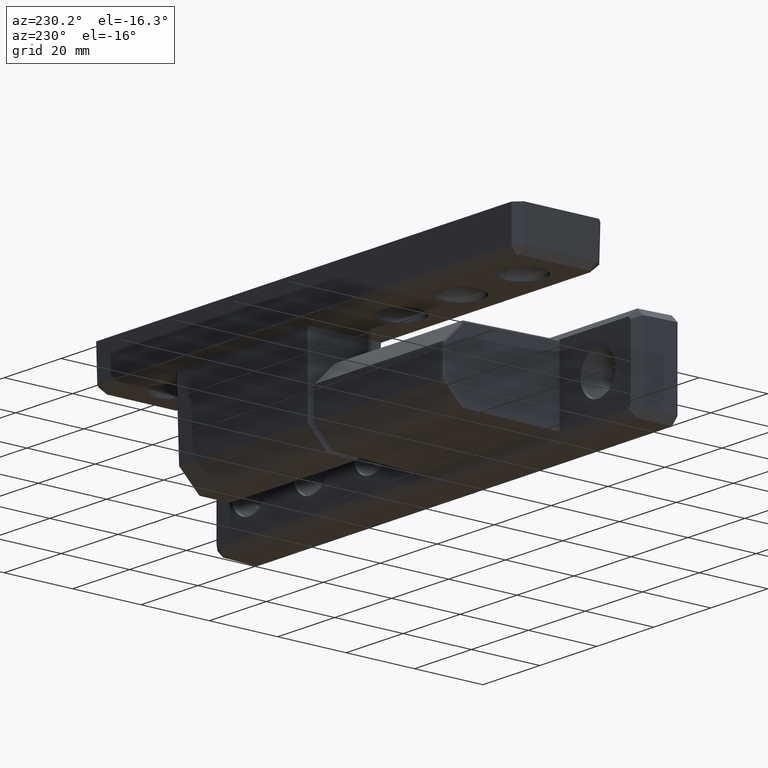
[diagram: clean part render]
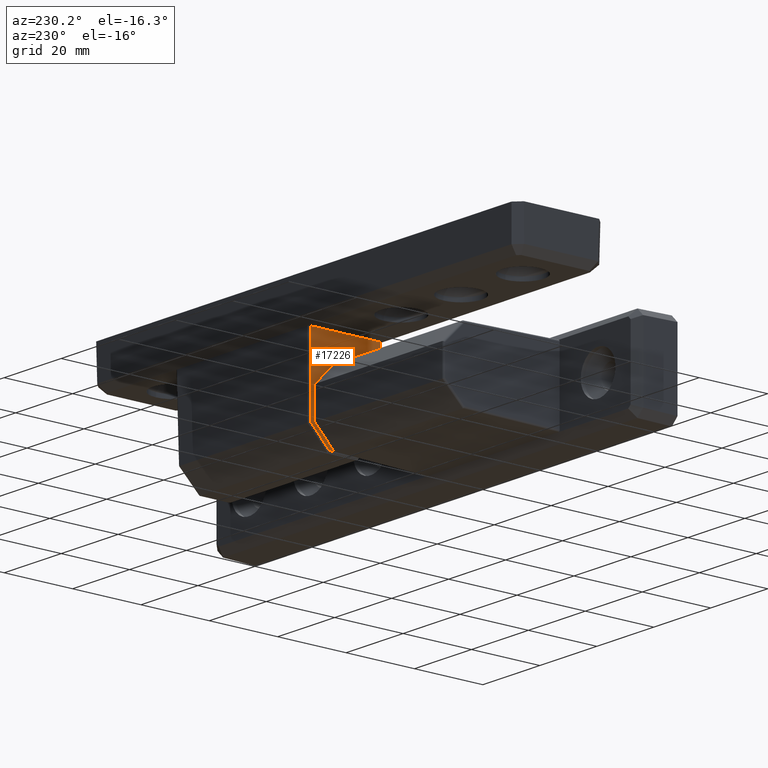
[diagram: same view with one face highlighted and labeled with its STEP entity id]
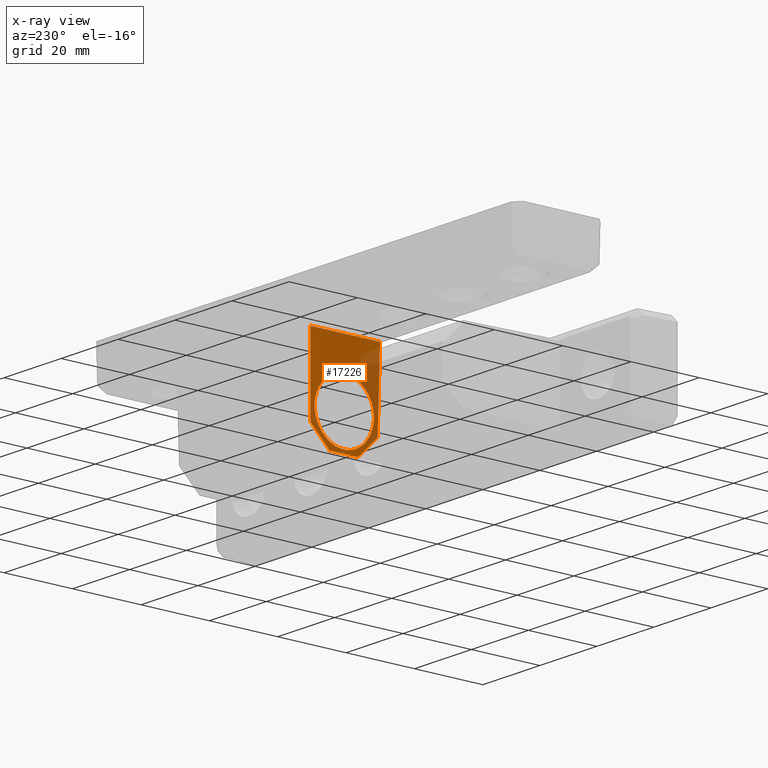
[diagram: x-ray of the same camera — body ghosted, the highlighted face saturated]
A machine part, auxiliary view. The second image highlights one B-rep face of the part: STEP entity #17226.
The next image is the same camera in x-ray: the body ghosted, the highlighted face saturated — about 29% of this face is hidden behind the body in this view.
In plain terms, the highlighted planar face has unit normal (-0.9998, 0, -0.0175).
Its self-contained STEP definition (entity closure, byte-faithful):
#376=ELLIPSE('',#18173,8.50129478837322,8.5);
#377=ELLIPSE('',#18177,8.701325253982,8.7);
#586=LINE('',#23396,#1984);
#587=LINE('',#23398,#1985);
#588=LINE('',#23400,#1986);
#589=LINE('',#23402,#1987);
#590=LINE('',#23404,#1988);
#591=LINE('',#23405,#1989);
#1984=VECTOR('',#19426,22.3862709241115);
#1985=VECTOR('',#19427,20.4256016555614);
#1986=VECTOR('',#19428,22.3862709241117);
#1987=VECTOR('',#19429,7.96160029979453);
#1988=VECTOR('',#19430,8.3857864376267);
#1989=VECTOR('',#19431,7.96160029979489);
#3890=PLANE('',#18176);
#4561=FACE_BOUND('',#5613,.T.);
#4668=FACE_OUTER_BOUND('',#5612,.T.);
#5612=EDGE_LOOP('',(#11120,#11121,#11122,#11123,#11124,#11125));
#5613=EDGE_LOOP('',(#11126,#11127));
#6893=VERTEX_POINT('',#23385);
#6894=VERTEX_POINT('',#23387);
#6896=VERTEX_POINT('',#23394);
#6897=VERTEX_POINT('',#23395);
#6898=VERTEX_POINT('',#23397);
#6899=VERTEX_POINT('',#23399);
#6900=VERTEX_POINT('',#23401);
#6901=VERTEX_POINT('',#23403);
#8577=EDGE_CURVE('',#6894,#6893,#376,.T.);
#8580=EDGE_CURVE('',#6896,#6897,#586,.T.);
#8581=EDGE_CURVE('',#6897,#6898,#587,.T.);
#8582=EDGE_CURVE('',#6898,#6899,#588,.T.);
#8583=EDGE_CURVE('',#6899,#6900,#589,.T.);
#8584=EDGE_CURVE('',#6900,#6901,#590,.T.);
#8585=EDGE_CURVE('',#6901,#6896,#591,.T.);
#8586=EDGE_CURVE('',#6894,#6893,#377,.T.);
#11120=ORIENTED_EDGE('',*,*,#8580,.T.);
#11121=ORIENTED_EDGE('',*,*,#8581,.T.);
#11122=ORIENTED_EDGE('',*,*,#8582,.T.);
#11123=ORIENTED_EDGE('',*,*,#8583,.T.);
#11124=ORIENTED_EDGE('',*,*,#8584,.T.);
#11125=ORIENTED_EDGE('',*,*,#8585,.T.);
#11126=ORIENTED_EDGE('',*,*,#8577,.T.);
#11127=ORIENTED_EDGE('',*,*,#8586,.F.);
#17226=ADVANCED_FACE('',(#4668,#4561),#3890,.T.);
#18173=AXIS2_PLACEMENT_3D('',#23388,#19417,#19418);
#18176=AXIS2_PLACEMENT_3D('',#23393,#19424,#19425);
#18177=AXIS2_PLACEMENT_3D('',#23406,#19432,#19433);
#19417=DIRECTION('center_axis',(0.999847695156391,0.,0.0174524064372835));
#19418=DIRECTION('ref_axis',(0.0174524064372835,0.,-0.999847695156391));
#19424=DIRECTION('center_axis',(-0.999847695156391,0.,-0.0174524064372835));
#19425=DIRECTION('ref_axis',(-0.0174524064372861,0.,0.999847695156391));
#19426=DIRECTION('',(-0.0174497491606827,-0.017449749160688,0.999695459881887));
#19427=DIRECTION('',(0.,1.,0.));
#19428=DIRECTION('',(0.0174497491606827,-0.0174497491606755,-0.999695459881888));
#19429=DIRECTION('',(0.0123416547509368,-0.707052927141246,-0.707052927141246));
#19430=DIRECTION('',(2.20216079314026E-16,-1.,-1.26161707343768E-14));
#19431=DIRECTION('',(-0.0123416547509368,-0.707052927141246,0.707052927141246));
#19432=DIRECTION('center_axis',(-0.999847695156391,0.,-0.0174524064372835));
#19433=DIRECTION('ref_axis',(-0.0174524064372835,0.,0.999847695156391));
#23385=CARTESIAN_POINT('',(-71.416707293342,-5.60798390487178,-34.587820620881));
#23387=CARTESIAN_POINT('',(-71.4167072933426,-20.3920160951475,-34.587820620847));
#23388=CARTESIAN_POINT('Origin',(-71.4899522443008,-13.,-30.3916201908055));
#23393=CARTESIAN_POINT('Origin',(-71.9000000000003,-12.9999999999998,-6.89999999999999));
#23394=CARTESIAN_POINT('',(-71.4220898630904,-22.8221660155109,-34.2794534065202));
#23395=CARTESIAN_POINT('',(-71.8127246753593,-23.2128008277799,-11.9));
#23396=CARTESIAN_POINT('',(-71.896863691231,-23.2969398436516,-7.07967900905974));
#23397=CARTESIAN_POINT('',(-71.8127246753593,-2.78719917221854,-11.9));
#23398=CARTESIAN_POINT('',(-71.8127246753593,1.15246327950993E-13,-11.9));
#23399=CARTESIAN_POINT('',(-71.4220898630904,-3.17783398448721,-34.2794534065204));
#23400=CARTESIAN_POINT('',(-71.896863691231,-2.70306015634686,-7.07967900905963));
#23401=CARTESIAN_POINT('',(-71.3238305409254,-8.8071067811856,-39.9087262032187));
#23402=CARTESIAN_POINT('',(-71.5753711126269,5.60364292016999,-25.4979765018631));
#23403=CARTESIAN_POINT('',(-71.3238305409254,-17.1928932188123,-39.9087262032188));
#23404=CARTESIAN_POINT('',(-71.3238305409254,-12.9999999999994,-39.9087262032188));
#23405=CARTESIAN_POINT('',(-71.5753711126269,-31.6036429201689,-25.4979765018623));
#23406=CARTESIAN_POINT('Origin',(-71.4967880001585,-12.9999999999991,-30.0000000000002));